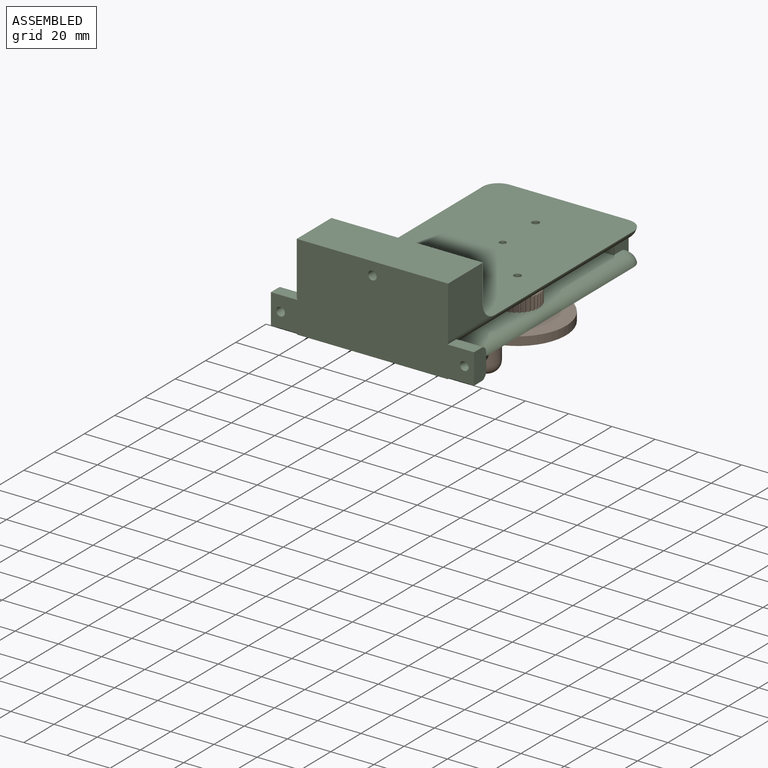
[diagram: assembled view]
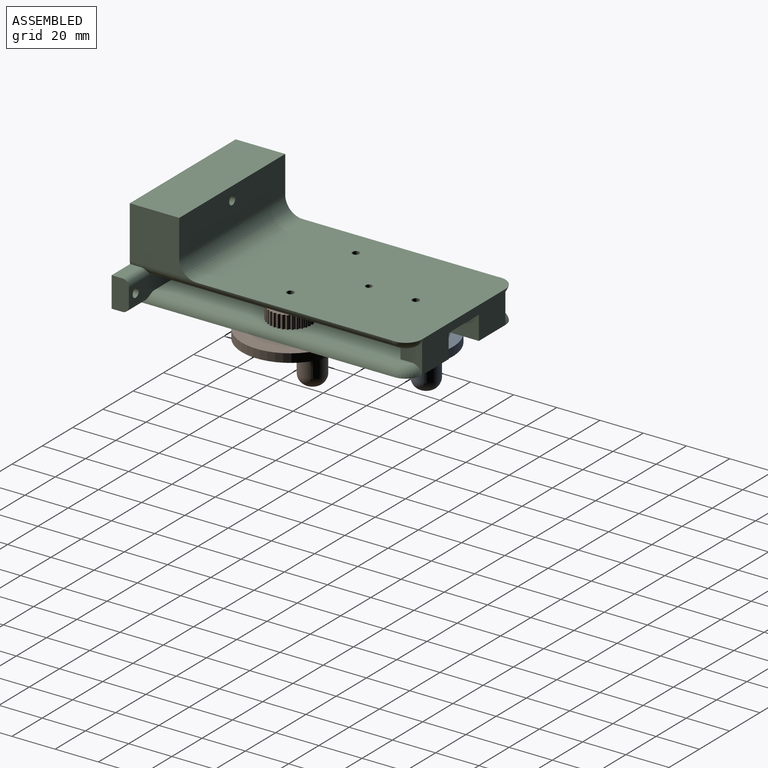
[diagram: assembled view, second angle]
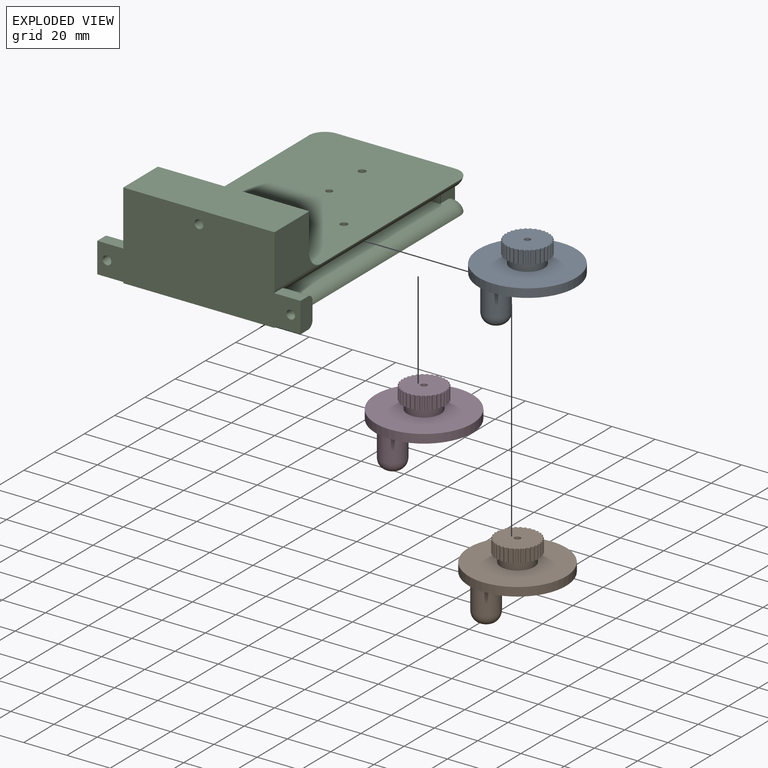
[diagram: exploded view]
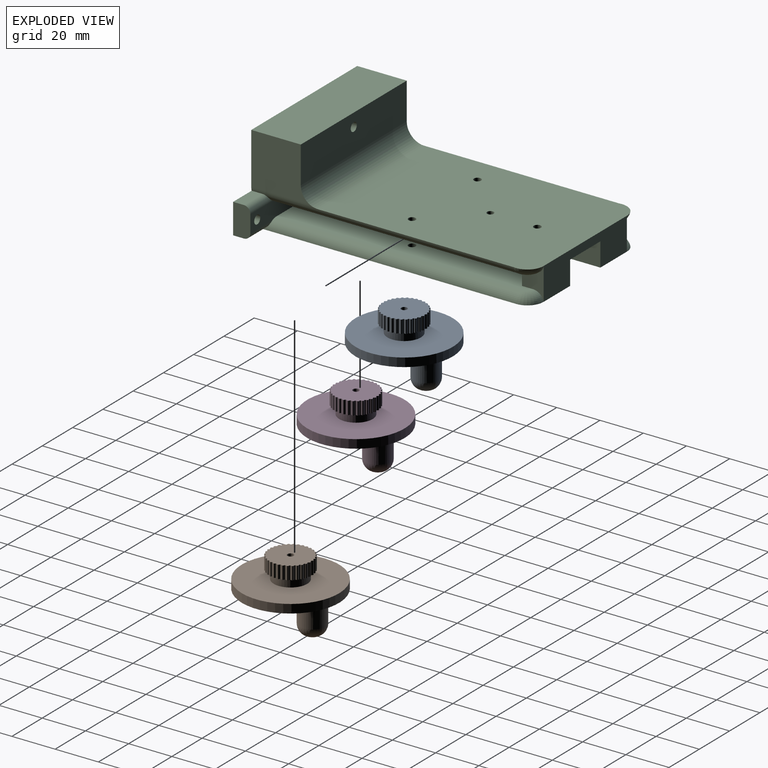
[diagram: exploded view, second angle]
ASSEMBLY  parts=4 mates=2
PART A: 111 faces, bbox 45.6x45x39 mm
  f0: plane 8.56x6mm, normal (-1,0.1,0), area 51.6mm2, adj f1,f4,f5,f100,f101
  f1: cylinder r=0.55mm len=6mm, axis (0,0,-1), area 3.6mm2, adj f0,f2,f4,f5
  f2: cylinder r=0.55mm len=6mm, axis (0,0,-1), area 6.6mm2, adj f1,f3,f4,f5
  f3: cylinder r=0.55mm len=6mm, axis (0,0,-1), area 3.6mm2, adj f2,f4,f5,f6
  f4: plane 19.91x19.91mm, normal (0,0,1), area 291.2mm2, adj f0,f1,f2,f3,f6,f7,f8,f9
  f5: plane 19.91x19.91mm, normal (0,0,-1), area 109.3mm2, adj f0,f1,f2,f3,f6,f7,f8,f9
  f6: cylinder r=0.55mm len=6mm, axis (0,0,-1), area 3.6mm2, adj f3,f4,f5,f7
  f7: cylinder r=0.55mm len=6mm, axis (0,0,-1), area 6.6mm2, adj f4,f5,f6,f8
  f8: cylinder r=0.55mm len=6mm, axis (0,0,-1), area 3.6mm2, adj f4,f5,f7,f9
  f9: cylinder r=0.55mm len=6mm, axis (0,0,-1), area 3.6mm2, adj f4,f5,f8,f10
  f10: cylinder r=0.55mm len=6mm, axis (0,0,-1), area 6.6mm2, adj f4,f5,f9,f11
  f11: cylinder r=0.55mm len=6mm, axis (0,0,-1), area 3.6mm2, adj f4,f5,f10,f12
  f12: cylinder r=0.55mm len=6mm, axis (0,0,-1), area 3.6mm2, adj f4,f5,f11,f13
  f13: cylinder r=0.55mm len=6mm, axis (0,0,-1), area 6.6mm2, adj f4,f5,f12,f14
  f14: cylinder r=0.55mm len=6mm, axis (0,0,-1), area 3.6mm2, adj f4,f5,f13,f15
  f15: cylinder r=0.55mm len=6mm, axis (0,0,-1), area 3.6mm2, adj f4,f5,f14,f16
  f16: cylinder r=0.55mm len=6mm, axis (0,0,-1), area 6.6mm2, adj f4,f5,f15,f17
  f17: cylinder r=0.55mm len=6mm, axis (0,0,-1), area 3.6mm2, adj f4,f5,f16,f18
  f18: cylinder r=0.55mm len=6mm, axis (0,0,-1), area 3.6mm2, adj f4,f5,f17,f19
  f19: cylinder r=0.55mm len=6mm, axis (0,0,-1), area 6.6mm2, adj f4,f5,f18,f20
  f20: cylinder r=0.55mm len=6mm, axis (0,0,-1), area 3.6mm2, adj f4,f5,f19,f21
  f21: cylinder r=0.55mm len=6mm, axis (0,0,-1), area 3.6mm2, adj f4,f5,f20,f22
  f22: cylinder r=0.55mm len=6mm, axis (0,0,-1), area 6.6mm2, adj f4,f5,f21,f23
  f23: cylinder r=0.55mm len=6mm, axis (0,0,-1), area 3.6mm2, adj f4,f5,f22,f24
  f24: cylinder r=0.55mm len=6mm, axis (0,0,-1), area 3.6mm2, adj f4,f5,f23,f25
  f25: cylinder r=0.55mm len=6mm, axis (0,0,-1), area 6.6mm2, adj f4,f5,f24,f26
  f26: cylinder r=0.55mm len=6mm, axis (0,0,-1), area 3.6mm2, adj f4,f5,f25,f27
  f27: cylinder r=0.55mm len=6mm, axis (0,0,-1), area 3.6mm2, adj f4,f5,f26,f28
  f28: cylinder r=0.55mm len=6mm, axis (0,0,-1), area 6.6mm2, adj f4,f5,f27,f29
  f29: cylinder r=0.55mm len=6mm, axis (0,0,-1), area 3.6mm2, adj f4,f5,f28,f30
  f30: cylinder r=0.55mm len=6mm, axis (0,0,-1), area 3.6mm2, adj f4,f5,f29,f31
  f31: cylinder r=0.55mm len=6mm, axis (0,0,-1), area 6.6mm2, adj f4,f5,f30,f32
  f32: cylinder r=0.55mm len=6mm, axis (0,0,-1), area 3.6mm2, adj f4,f5,f31,f33
  f33: cylinder r=0.55mm len=6mm, axis (0,0,-1), area 3.6mm2, adj f4,f5,f32,f34
  f34: cylinder r=0.55mm len=6mm, axis (0,0,-1), area 6.6mm2, adj f4,f5,f33,f35
  f35: cylinder r=0.55mm len=6mm, axis (0,0,-1), area 3.6mm2, adj f4,f5,f34,f36
  f36: cylinder r=0.55mm len=6mm, axis (0,0,-1), area 3.6mm2, adj f4,f5,f35,f37
  f37: cylinder r=0.55mm len=6mm, axis (0,0,-1), area 6.6mm2, adj f4,f5,f36,f38
  f38: cylinder r=0.55mm len=6mm, axis (0,0,-1), area 3.6mm2, adj f4,f5,f37,f39
  f39: cylinder r=0.55mm len=6mm, axis (0,0,-1), area 3.6mm2, adj f4,f5,f38,f40
  f40: cylinder r=0.55mm len=6mm, axis (0,0,-1), area 6.6mm2, adj f4,f5,f39,f41
  f41: cylinder r=0.55mm len=6mm, axis (0,0,-1), area 3.6mm2, adj f4,f5,f40,f42
  f42: cylinder r=0.55mm len=6mm, axis (0,0,-1), area 3.6mm2, adj f4,f5,f41,f43
  f43: cylinder r=0.55mm len=6mm, axis (0,0,-1), area 6.6mm2, adj f4,f5,f42,f44
  f44: cylinder r=0.55mm len=6mm, axis (0,0,-1), area 3.6mm2, adj f4,f5,f43,f45
  f45: cylinder r=0.55mm len=6mm, axis (0,0,-1), area 3.6mm2, adj f4,f5,f44,f46
  f46: cylinder r=0.55mm len=6mm, axis (0,0,-1), area 6.6mm2, adj f4,f5,f45,f47
  f47: cylinder r=0.55mm len=6mm, axis (0,0,-1), area 3.6mm2, adj f4,f5,f46,f48
  f48: cylinder r=0.55mm len=6mm, axis (0,0,-1), area 3.6mm2, adj f4,f5,f47,f49
  f49: cylinder r=0.55mm len=6mm, axis (0,0,-1), area 6.6mm2, adj f4,f5,f48,f50
  f50: cylinder r=0.55mm len=6mm, axis (0,0,-1), area 3.6mm2, adj f4,f5,f49,f51
  f51: cylinder r=0.55mm len=6mm, axis (0,0,-1), area 3.6mm2, adj f4,f5,f50,f52
  f52: cylinder r=0.55mm len=6mm, axis (0,0,-1), area 6.6mm2, adj f4,f5,f51,f53
  f53: cylinder r=0.55mm len=6mm, axis (0,0,-1), area 3.6mm2, adj f4,f5,f52,f54
  f54: cylinder r=0.55mm len=6mm, axis (0,0,-1), area 3.6mm2, adj f4,f5,f53,f55
  f55: cylinder r=0.55mm len=6mm, axis (0,0,-1), area 6.6mm2, adj f4,f5,f54,f56
  f56: cylinder r=0.55mm len=6mm, axis (0,0,-1), area 3.6mm2, adj f4,f5,f55,f57
  f57: cylinder r=0.55mm len=6mm, axis (0,0,-1), area 3.6mm2, adj f4,f5,f56,f58
  f58: cylinder r=0.55mm len=6mm, axis (0,0,-1), area 6.6mm2, adj f4,f5,f57,f59
  f59: cylinder r=0.55mm len=6mm, axis (0,0,-1), area 3.6mm2, adj f4,f5,f58,f60
  f60: cylinder r=0.55mm len=6mm, axis (0,0,-1), area 3.6mm2, adj f4,f5,f59,f61
  f61: cylinder r=0.55mm len=6mm, axis (0,0,-1), area 6.6mm2, adj f4,f5,f60,f62
  f62: cylinder r=0.55mm len=6mm, axis (0,0,-1), area 3.6mm2, adj f4,f5,f61,f63
  f63: cylinder r=0.55mm len=6mm, axis (0,0,-1), area 3.6mm2, adj f4,f5,f62,f64
  f64: cylinder r=0.55mm len=6mm, axis (0,0,-1), area 6.6mm2, adj f4,f5,f63,f65
  f65: cylinder r=0.55mm len=6mm, axis (0,0,-1), area 3.6mm2, adj f4,f5,f64,f66
  f66: cylinder r=0.55mm len=6mm, axis (0,0,-1), area 3.6mm2, adj f4,f5,f65,f67
  f67: cylinder r=0.55mm len=6mm, axis (0,0,-1), area 6.6mm2, adj f4,f5,f66,f68
  f68: cylinder r=0.55mm len=6mm, axis (0,0,-1), area 3.6mm2, adj f4,f5,f67,f69
  f69: cylinder r=0.55mm len=6mm, axis (0,0,-1), area 3.6mm2, adj f4,f5,f68,f70
  f70: cylinder r=0.55mm len=6mm, axis (0,0,-1), area 6.6mm2, adj f4,f5,f69,f71
  f71: cylinder r=0.55mm len=6mm, axis (0,0,-1), area 3.6mm2, adj f4,f5,f70,f72
  f72: cylinder r=0.55mm len=6mm, axis (0,0,-1), area 3.6mm2, adj f4,f5,f71,f73
  f73: cylinder r=0.55mm len=6mm, axis (0,0,-1), area 6.6mm2, adj f4,f5,f72,f74
  f74: cylinder r=0.55mm len=6mm, axis (0,0,-1), area 3.6mm2, adj f4,f5,f73,f75
  f75: cylinder r=0.55mm len=6mm, axis (0,0,-1), area 3.6mm2, adj f4,f5,f74,f76
  f76: cylinder r=0.55mm len=6mm, axis (0,0,-1), area 6.6mm2, adj f4,f5,f75,f77
  f77: cylinder r=0.55mm len=6mm, axis (0,0,-1), area 3.6mm2, adj f4,f5,f76,f78
  f78: cylinder r=0.55mm len=6mm, axis (0,0,-1), area 3.6mm2, adj f4,f5,f77,f79
  f79: cylinder r=0.55mm len=6mm, axis (0,0,-1), area 6.6mm2, adj f4,f5,f78,f80
  f80: cylinder r=0.55mm len=6mm, axis (0,0,-1), area 3.6mm2, adj f4,f5,f79,f81
  f81: cylinder r=0.55mm len=6mm, axis (0,0,-1), area 3.6mm2, adj f4,f5,f80,f82
  f82: cylinder r=0.55mm len=6mm, axis (0,0,-1), area 6.6mm2, adj f4,f5,f81,f83
  f83: cylinder r=0.55mm len=6mm, axis (0,0,-1), area 3.6mm2, adj f4,f5,f82,f84
  f84: cylinder r=0.55mm len=6mm, axis (0,0,-1), area 3.6mm2, adj f4,f5,f83,f85
  f85: cylinder r=0.55mm len=6mm, axis (0,0,-1), area 6.6mm2, adj f4,f5,f84,f86
  f86: cylinder r=0.55mm len=6mm, axis (0,0,-1), area 3.6mm2, adj f4,f5,f85,f87
  f87: cylinder r=0.55mm len=6mm, axis (0,0,-1), area 3.6mm2, adj f4,f5,f86,f88
  f88: cylinder r=0.55mm len=6mm, axis (0,0,-1), area 6.6mm2, adj f4,f5,f87,f89
  f89: cylinder r=0.55mm len=6mm, axis (0,0,-1), area 3.6mm2, adj f4,f5,f88,f90
  f90: cylinder r=0.55mm len=6mm, axis (0,0,-1), area 3.6mm2, adj f4,f5,f89,f91
  f91: cylinder r=0.55mm len=6mm, axis (0,0,-1), area 6.6mm2, adj f4,f5,f90,f92
  f92: cylinder r=0.55mm len=6mm, axis (0,0,-1), area 3.6mm2, adj f4,f5,f91,f93
  f93: cylinder r=0.55mm len=6mm, axis (0,0,-1), area 3.6mm2, adj f4,f5,f92,f94
  f94: cylinder r=0.55mm len=6mm, axis (0,0,-1), area 6.6mm2, adj f4,f5,f93,f95
  f95: cylinder r=0.55mm len=6mm, axis (0,0,-1), area 3.6mm2, adj f4,f5,f94,f97
  f96: plane 8.56x6mm, normal (1,-0.1,0), area 51.6mm2, adj f4,f5,f99,f100,f101
  f97: cylinder r=0.55mm len=6mm, axis (0,0,-1), area 3.6mm2, adj f4,f5,f95,f98
  f98: cylinder r=0.55mm len=6mm, axis (0,0,-1), area 6.6mm2, adj f4,f5,f97,f99
  f99: cylinder r=0.55mm len=6mm, axis (0,0,-1), area 3.6mm2, adj f4,f5,f96,f98
  f100: cylinder r=1.4mm len=6mm, axis (0,0,1), area 52.8mm2, adj f0,f4,f96,f101
  f101: plane 9.1x2.8mm, normal (0,0,1), area 6.2mm2, adj f0,f96,f100,f102
  f102: cylinder r=7.74mm len=15.47mm, axis (0,0,1), area 194.4mm2, adj f5,f101,f105
  f103: cylinder r=22.5mm len=45mm, axis (0,0,1), area 565.5mm2, adj f104,f105,f109
  f104: plane 45x43.02mm, normal (0,0,-1), area 1250.8mm2, adj f103,f108
  f105: plane 45x45mm, normal (0,0,1), area 1402.4mm2, adj f102,f103
  f106: cylinder r=6mm len=15mm, axis (0,0,1), area 565.5mm2, adj f108,f109,f110
  f107: plane 2x2mm, normal (0,0,-1), area 3.1mm2, adj f110
  f108: torus R=11mm, axis (0,0,-1), area 263.7mm2, adj f104,f106,f109
  f109: bspline ~19.41x5.41mm, area 80.4mm2, adj f103,f106,f108
  f110: torus R=1mm, axis (0,0,-1), area 206.4mm2, adj f106,f107
PART B: same geometry as A
PART C: 47 faces, bbox 94x130x40 mm
  f0: plane 55x15mm, normal (0,1,0), area 605mm2, adj f1,f13,f15,f16,f23,f45,f46
  f1: plane 130x70mm, normal (0,0,-1), area 8551.7mm2, adj f0,f4,f5,f6,f7,f40,f41,f42
  f2: plane 17.5x7mm, normal (0,-1,0), area 122.5mm2, adj f3,f15,f16,f46
  f3: plane 117.1x60.2mm, normal (0,0,1), area 6442.1mm2, adj f2,f4,f5,f7,f10,f13,f14,f15
  f4: cylinder r=1.65mm len=4mm, axis (0,0,-1), area 41.5mm2, adj f1,f3
  f5: cylinder r=1.65mm len=4mm, axis (0,0,-1), area 41.5mm2, adj f1,f3
  f6: plane 94x40mm, normal (0,-1,0), area 3098mm2, adj f1,f8,f9,f11,f12,f17,f18,f24
  f7: cylinder r=1.5mm len=4mm, axis (0,0,-1), area 37.7mm2, adj f1,f3
  f8: plane 12.13x5mm, normal (0,0,-1), area 60.6mm2, adj f6,f11,f35,f40
  f9: plane 14x8mm, normal (1,0,0), area 108.1mm2, adj f6,f10,f12,f25,f32,f34
  f10: plane 94x8mm, normal (0,1,0), area 663.8mm2, adj f3,f9,f11,f16,f29,f30,f32,f33
  f11: plane 14x8mm, normal (-1,0,0), area 108.1mm2, adj f6,f8,f10,f24,f33,f35
  f12: plane 12.13x5mm, normal (0,0,-1), area 60.6mm2, adj f6,f9,f34,f42
  f13: plane 15x10mm, normal (-1,0,0), area 79.9mm2, adj f0,f3,f14,f16,f37,f41
  f14: plane 17.5x7mm, normal (0,-1,0), area 122.5mm2, adj f3,f13,f16,f45
  f15: plane 15x10mm, normal (1,0,0), area 79.9mm2, adj f0,f2,f3,f16,f39,f43
  f16: plane 122x60.2mm, normal (0,0,-1), area 6910.5mm2, adj f0,f2,f10,f13,f14,f15,f19,f20
  f17: plane 27.03x24mm, normal (1,0,0), area 558.1mm2, adj f6,f26,f27,f31,f38
  f18: plane 27.03x24mm, normal (-1,0,0), area 558.1mm2, adj f6,f26,f27,f31,f36
  f19: cylinder r=1.65mm len=4mm, axis (0,0,1), area 41.5mm2, adj f16,f23
  f20: cylinder r=1.65mm len=4mm, axis (0,0,1), area 41.5mm2, adj f16,f23
  f21: cylinder r=1.65mm len=4mm, axis (0,0,1), area 41.5mm2, adj f16,f23
  f22: cylinder r=1.5mm len=4mm, axis (0,0,1), area 37.7mm2, adj f16,f23
  f23: plane 99.09x70mm, normal (0,0,1), area 6861.4mm2, adj f0,f19,f20,f21,f22,f31,f36,f37
  f24: plane 12.23x5mm, normal (0,0,1), area 61.2mm2, adj f6,f11,f33,f36
  f25: plane 12.23x5mm, normal (0,0,1), area 61.2mm2, adj f6,f9,f32,f38
  f26: plane 70x17mm, normal (0,1,0), area 1177.4mm2, adj f17,f18,f27,f28,f31
  f27: plane 70x22.91mm, normal (0,0,1), area 1603.4mm2, adj f6,f17,f18,f26
  f28: cylinder r=2mm len=22.91mm, axis (0,1,0), area 287.8mm2, adj f6,f26
  f29: cylinder r=2mm len=8mm, axis (0,1,0), area 100.5mm2, adj f6,f10
  f30: cylinder r=2mm len=8mm, axis (0,1,0), area 100.5mm2, adj f6,f10
  f31: cylinder r=8mm len=70mm, axis (1,0,0), area 879.2mm2, adj f17,f18,f23,f26,f36,f38
  f32: cylinder r=3mm len=14.82mm, axis (-1,0,0), area 60.7mm2, adj f9,f10,f25,f38
  f33: cylinder r=3mm len=14.82mm, axis (-1,0,0), area 60.7mm2, adj f10,f11,f24,f36
  f34: cylinder r=3mm len=14.72mm, axis (-1,0,0), area 60.2mm2, adj f9,f10,f12,f42
  f35: cylinder r=3mm len=14.72mm, axis (-1,0,0), area 60.2mm2, adj f8,f10,f11,f40
  f36: cylinder r=5mm len=121.78mm, axis (0,1,0), area 811.7mm2, adj f6,f10,f16,f18,f23,f24,f31,f33
  f37: torus R=2.6mm, axis (0,0,1), area 66.6mm2, adj f13,f16,f23,f36
  f38: cylinder r=5mm len=121.78mm, axis (0,-1,0), area 811.7mm2, adj f6,f10,f16,f17,f23,f25,f31,f32
  f39: torus R=2.6mm, axis (0,0,1), area 66.6mm2, adj f15,f16,f23,f38
  f40: cylinder r=5mm len=122.5mm, axis (0,-1,0), area 790.3mm2, adj f1,f3,f6,f8,f10,f35,f41
  f41: torus R=2.6mm, axis (0,0,-1), area 59.4mm2, adj f1,f3,f13,f40
  f42: cylinder r=5mm len=122.5mm, axis (0,-1,0), area 790.3mm2, adj f1,f3,f6,f10,f12,f34,f43
  f43: torus R=2.6mm, axis (0,0,-1), area 59.4mm2, adj f1,f3,f15,f42
  f44: plane 20x4mm, normal (0,1,0), area 80mm2, adj f1,f3,f45,f46
  f45: plane 25x11mm, normal (1,0,0), area 170mm2, adj f0,f1,f3,f14,f16,f44
  f46: plane 25x11mm, normal (-1,0,0), area 170mm2, adj f0,f1,f2,f3,f16,f44
PART D: same geometry as A
PLACE A t=(-102.29,41.87,37.61)mm
PLACE B t=(-80.67,4.41,37.61)mm
PLACE C t=(-0.59,1.3,33.61)mm
PLACE D t=(-123.92,4.41,37.61)mm
MATE revolute B.f100 <-> C.f4  axis (0,0,-1) through (-80.67,4.41,37.61)mm
MATE revolute D.f100 <-> C.f5  axis (0,0,1) through (-123.92,4.41,37.61)mm
